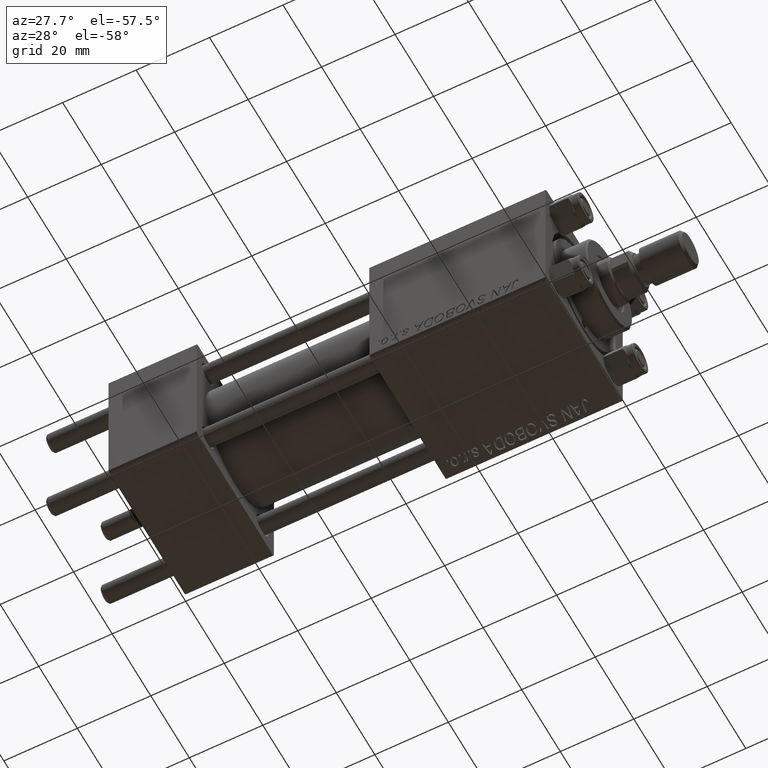
[diagram: clean part render]
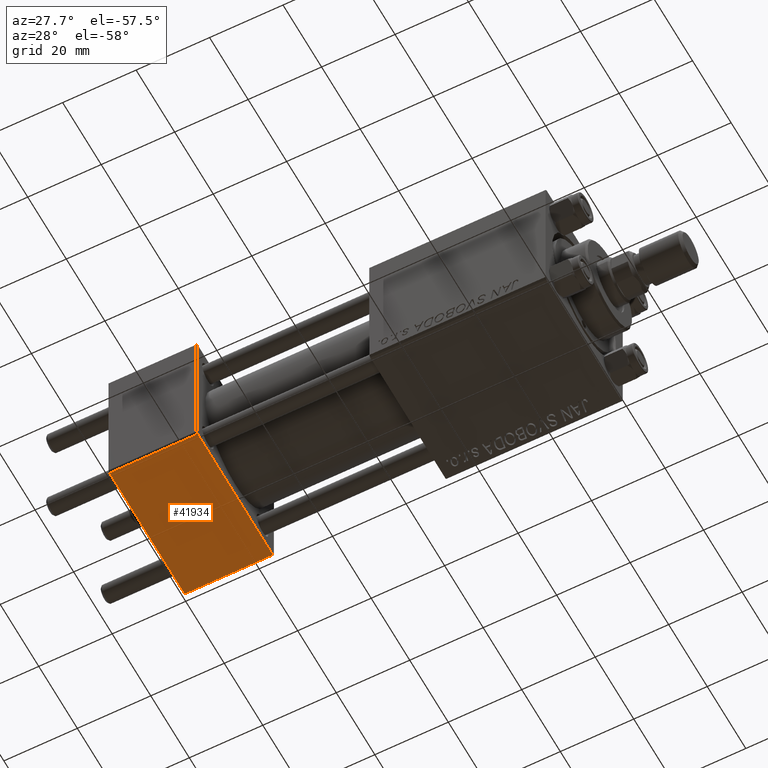
[diagram: same view with one face highlighted and labeled with its STEP entity id]
A machine part, auxiliary view. The second image highlights one B-rep face of the part: STEP entity #41934.
In plain terms, the highlighted planar face has unit normal (0, -0, -1).
Its self-contained STEP definition (entity closure, byte-faithful):
#1124 = DIRECTION ( 'NONE',  ( -1.000000000000000000, 0.000000000000000000, 0.000000000000000000 ) ) ;
#6089 = EDGE_CURVE ( 'NONE', #11806, #26504, #46027, .T. ) ;
#7446 = PLANE ( 'NONE',  #27680 ) ;
#8369 = DIRECTION ( 'NONE',  ( 0.000000000000000000, -1.000000000000000000, 1.734723475976807094E-16 ) ) ;
#8512 = CARTESIAN_POINT ( 'NONE',  ( 24.00000000000000000, 19.50000000000000711, -20.00000000000000711 ) ) ;
#9238 = CARTESIAN_POINT ( 'NONE',  ( 24.00000000000000000, -19.50000000000000711, -20.00000000000000000 ) ) ;
#9271 = LINE ( 'NONE', #16918, #15113 ) ;
#10940 = EDGE_LOOP ( 'NONE', ( #37857, #11607, #45343, #26901 ) ) ;
#11260 = EDGE_CURVE ( 'NONE', #41436, #11806, #16659, .T. ) ;
#11607 = ORIENTED_EDGE ( 'NONE', *, *, #11260, .T. ) ;
#11788 = EDGE_CURVE ( 'NONE', #41436, #24888, #39450, .T. ) ;
#11806 = VERTEX_POINT ( 'NONE', #12688 ) ;
#12688 = CARTESIAN_POINT ( 'NONE',  ( 24.00000000000000000, 19.50000000000000711, -20.00000000000000711 ) ) ;
#15113 = VECTOR ( 'NONE', #1124, 1000.000000000000000 ) ;
#16502 = VECTOR ( 'NONE', #8369, 1000.000000000000000 ) ;
#16659 = LINE ( 'NONE', #8512, #46601 ) ;
#16918 = CARTESIAN_POINT ( 'NONE',  ( 0.000000000000000000, -19.50000000000000711, -20.00000000000000000 ) ) ;
#17716 = CARTESIAN_POINT ( 'NONE',  ( 0.000000000000000000, 19.50000000000000711, -20.00000000000000711 ) ) ;
#18967 = EDGE_CURVE ( 'NONE', #26504, #24888, #9271, .T. ) ;
#19418 = DIRECTION ( 'NONE',  ( 0.000000000000000000, 1.000000000000000000, -1.734723475976806848E-16 ) ) ;
#20735 = DIRECTION ( 'NONE',  ( 1.000000000000000000, 0.000000000000000000, 0.000000000000000000 ) ) ;
#24888 = VERTEX_POINT ( 'NONE', #42394 ) ;
#26504 = VERTEX_POINT ( 'NONE', #9238 ) ;
#26901 = ORIENTED_EDGE ( 'NONE', *, *, #18967, .T. ) ;
#27680 = AXIS2_PLACEMENT_3D ( 'NONE', #45666, #41854, #19418 ) ;
#30661 = FACE_OUTER_BOUND ( 'NONE', #10940, .T. ) ;
#35066 = CARTESIAN_POINT ( 'NONE',  ( 24.00000000000000000, 20.00000000000000000, -20.00000000000000711 ) ) ;
#37857 = ORIENTED_EDGE ( 'NONE', *, *, #11788, .F. ) ;
#39450 = LINE ( 'NONE', #44264, #16502 ) ;
#41436 = VERTEX_POINT ( 'NONE', #17716 ) ;
#41854 = DIRECTION ( 'NONE',  ( 0.000000000000000000, -1.734723475976806848E-16, -1.000000000000000000 ) ) ;
#41934 = ADVANCED_FACE ( 'NONE', ( #30661 ), #7446, .T. ) ;
#42394 = CARTESIAN_POINT ( 'NONE',  ( 0.000000000000000000, -19.50000000000000711, -20.00000000000000000 ) ) ;
#44264 = CARTESIAN_POINT ( 'NONE',  ( 0.000000000000000000, 20.00000000000000000, -20.00000000000000711 ) ) ;
#45343 = ORIENTED_EDGE ( 'NONE', *, *, #6089, .T. ) ;
#45666 = CARTESIAN_POINT ( 'NONE',  ( 24.00000000000000000, 20.00000000000000000, -20.00000000000000711 ) ) ;
#46027 = LINE ( 'NONE', #35066, #49784 ) ;
#46515 = DIRECTION ( 'NONE',  ( 0.000000000000000000, -1.000000000000000000, 1.734723475976807094E-16 ) ) ;
#46601 = VECTOR ( 'NONE', #20735, 1000.000000000000000 ) ;
#49784 = VECTOR ( 'NONE', #46515, 1000.000000000000000 ) ;